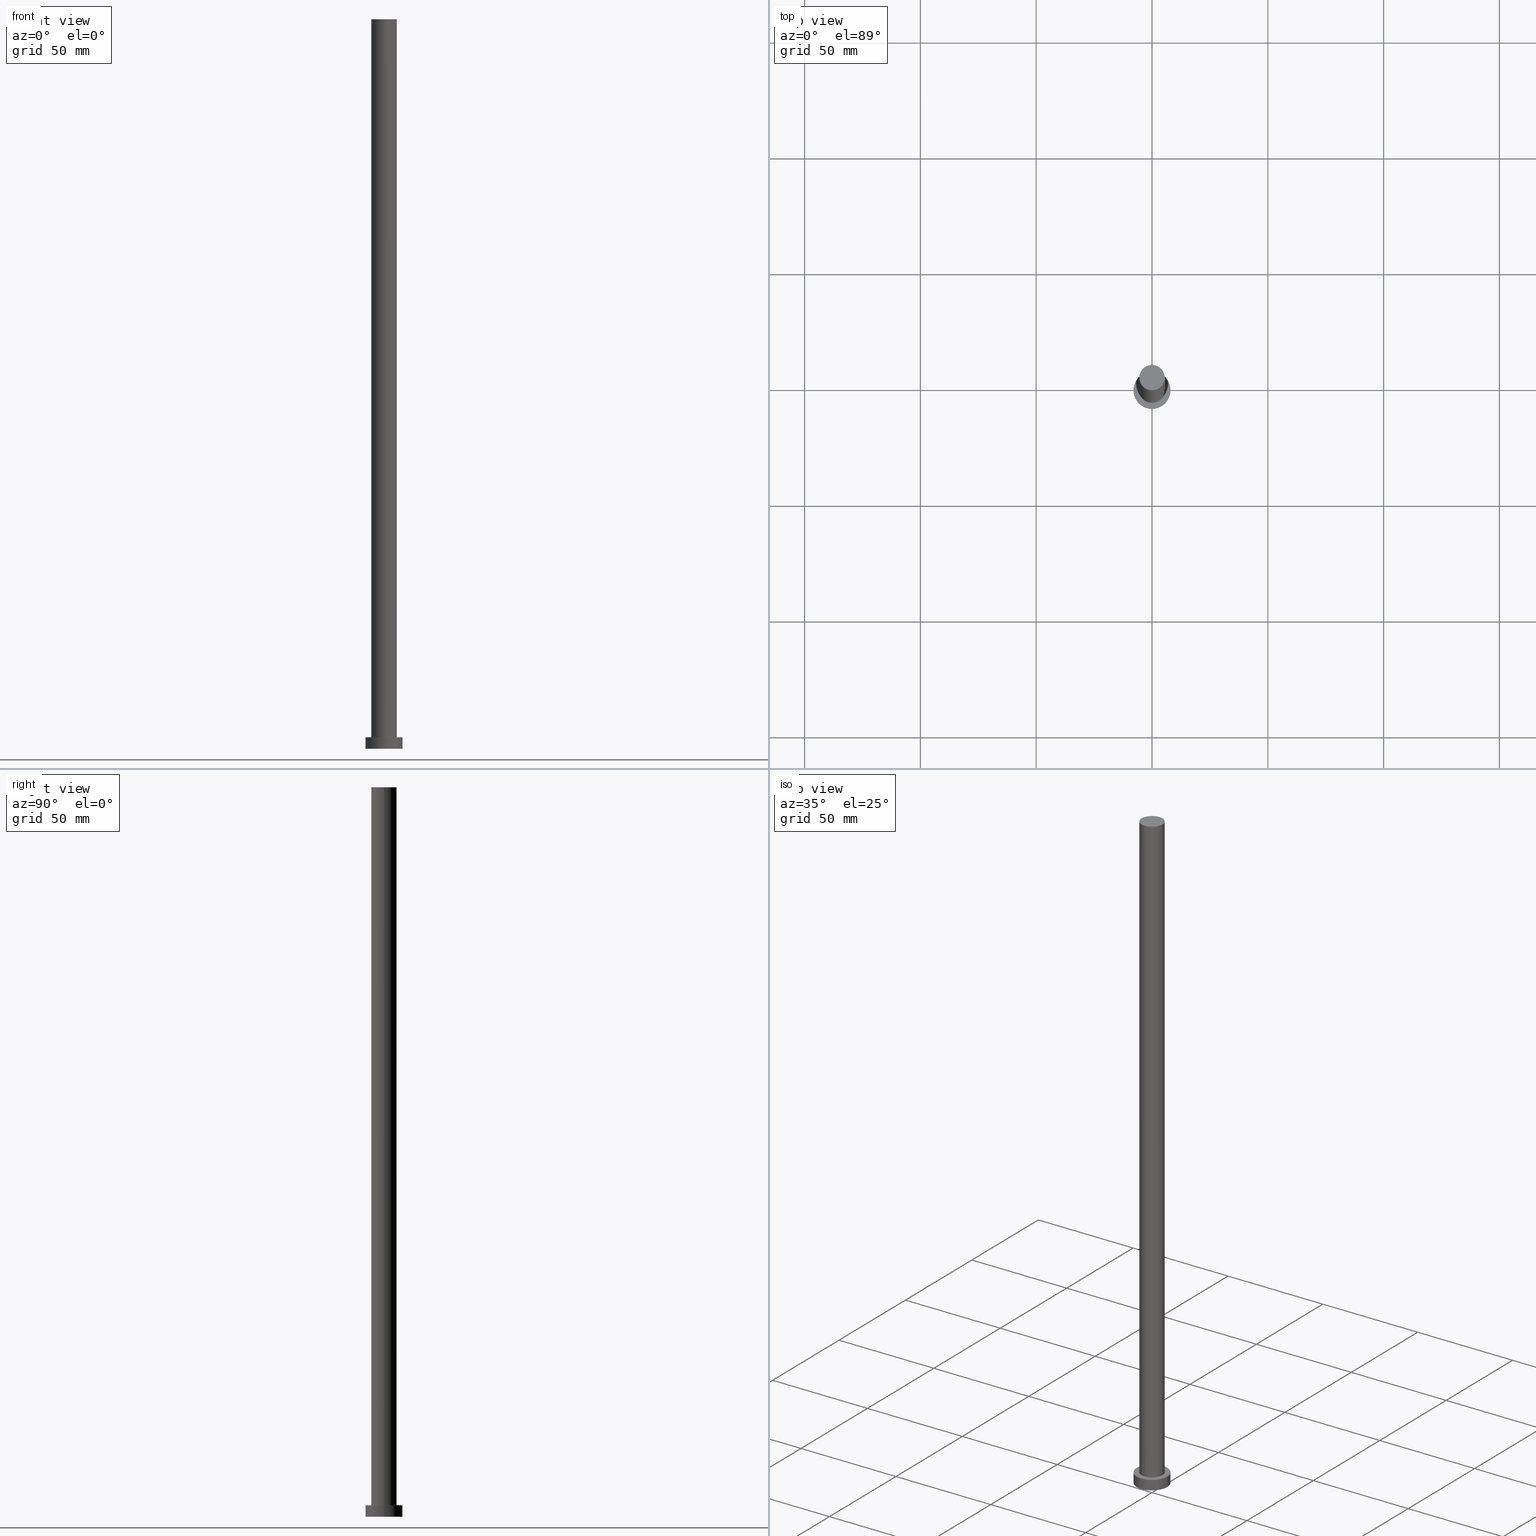
[diagram: canonical four-view strip — front | top / right | iso, engineering-drawing reading convention]
A machine part, canonical four-view strip (front | top / right | iso — engineering-drawing reading convention). The complete STEP part file that produces these views, byte-faithful:
ISO-10303-21;
HEADER;
FILE_DESCRIPTION (( 'STEP AP203' ),
    '1' );
FILE_NAME ('e5e1.STEP',
    '2023-02-12T11:14:09',
    ( '' ),
    ( '' ),
    'SwSTEP 2.0',
    'SolidWorks 2019',
    '' );
FILE_SCHEMA (( 'CONFIG_CONTROL_DESIGN' ));
ENDSEC;

DATA;
#1 = DIRECTION ( 'NONE',  ( 1.000000000000000000, 0.000000000000000000, 0.000000000000000000 ) ) ;
#2 = DATE_AND_TIME ( #180, #103 ) ;
#3 = DIRECTION ( 'NONE',  ( -0.000000000000000000, -0.000000000000000000, -1.000000000000000000 ) ) ;
#4 = VECTOR ( 'NONE', #3, 1000.000000000000000 ) ;
#5 = PLANE ( 'NONE',  #116 ) ;
#6 = CARTESIAN_POINT ( 'NONE',  ( 0.000000000000000000, 0.000000000000000000, 315.0000000000000000 ) ) ;
#7 = DIRECTION ( 'NONE',  ( -0.000000000000000000, -0.000000000000000000, -1.000000000000000000 ) ) ;
#8 = FACE_OUTER_BOUND ( 'NONE', #93, .T. ) ;
#9 = CIRCLE ( 'NONE', #147, 5.500000000000000000 ) ;
#10 = SECURITY_CLASSIFICATION ( '', '', #126 ) ;
#11 = DIRECTION ( 'NONE',  ( 0.000000000000000000, 0.000000000000000000, 1.000000000000000000 ) ) ;
#12 = CARTESIAN_POINT ( 'NONE',  ( 0.000000000000000000, 0.000000000000000000, 5.000000000000000000 ) ) ;
#13 = EDGE_CURVE ( 'NONE', #27, #154, #65, .T. ) ;
#14 = CYLINDRICAL_SURFACE ( 'NONE', #223, 5.500000000000000000 ) ;
#15 = AXIS2_PLACEMENT_3D ( 'NONE', #227, #49, #208 ) ;
#16 = DIRECTION ( 'NONE',  ( 0.000000000000000000, 0.000000000000000000, 1.000000000000000000 ) ) ;
#17 = DIRECTION ( 'NONE',  ( 1.000000000000000000, 0.000000000000000000, 0.000000000000000000 ) ) ;
#18 = VERTEX_POINT ( 'NONE', #80 ) ;
#19 = EDGE_LOOP ( 'NONE', ( #23, #25 ) ) ;
#20 = VERTEX_POINT ( 'NONE', #181 ) ;
#21 = ORIENTED_EDGE ( 'NONE', *, *, #214, .F. ) ;
#22 = PERSON_AND_ORGANIZATION ( #218, #231 ) ;
#23 = ORIENTED_EDGE ( 'NONE', *, *, #235, .T. ) ;
#24 = APPROVAL_STATUS ( 'not_yet_approved' ) ;
#25 = ORIENTED_EDGE ( 'NONE', *, *, #26, .T. ) ;
#26 = EDGE_CURVE ( 'NONE', #150, #43, #167, .T. ) ;
#27 = VERTEX_POINT ( 'NONE', #62 ) ;
#28 = FACE_BOUND ( 'NONE', #232, .T. ) ;
#29 = AXIS2_PLACEMENT_3D ( 'NONE', #102, #7, #48 ) ;
#30 = DIRECTION ( 'NONE',  ( 0.000000000000000000, 0.000000000000000000, 1.000000000000000000 ) ) ;
#31 = FACE_OUTER_BOUND ( 'NONE', #73, .T. ) ;
#32 = DIRECTION ( 'NONE',  ( 1.000000000000000000, 0.000000000000000000, 0.000000000000000000 ) ) ;
#33 = AXIS2_PLACEMENT_3D ( 'NONE', #230, #16, #17 ) ;
#34 = APPROVAL_STATUS ( 'not_yet_approved' ) ;
#35 = UNCERTAINTY_MEASURE_WITH_UNIT (LENGTH_MEASURE( 1.000000000000000082E-05 ), #125, 'distance_accuracy_value', 'NONE');
#36 = VERTEX_POINT ( 'NONE', #221 ) ;
#37 = ORIENTED_EDGE ( 'NONE', *, *, #146, .F. ) ;
#38 = CALENDAR_DATE ( 2023, 12, 2 ) ;
#39 = ORIENTED_EDGE ( 'NONE', *, *, #13, .F. ) ;
#40 = AXIS2_PLACEMENT_3D ( 'NONE', #6, #162, #99 ) ;
#41 = PERSON_AND_ORGANIZATION ( #218, #231 ) ;
#42 = APPROVAL ( #34, 'NEUR�EN�' ) ;
#43 = VERTEX_POINT ( 'NONE', #205 ) ;
#44 = CARTESIAN_POINT ( 'NONE',  ( -5.500000000000000000, 0.000000000000000000, 315.0000000000000000 ) ) ;
#45 = AXIS2_PLACEMENT_3D ( 'NONE', #185, #30, #50 ) ;
#46 = VECTOR ( 'NONE', #246, 1000.000000000000000 ) ;
#47 = LOCAL_TIME ( 12, 14, 9.000000000000000000, #219 ) ;
#48 = DIRECTION ( 'NONE',  ( -1.000000000000000000, 0.000000000000000000, 0.000000000000000000 ) ) ;
#49 = DIRECTION ( 'NONE',  ( -0.000000000000000000, -0.000000000000000000, -1.000000000000000000 ) ) ;
#50 = DIRECTION ( 'NONE',  ( 1.000000000000000000, 0.000000000000000000, 0.000000000000000000 ) ) ;
#51 = LOCAL_TIME ( 12, 14, 9.000000000000000000, #202 ) ;
#52 = FACE_OUTER_BOUND ( 'NONE', #253, .T. ) ;
#53 = DATE_TIME_ROLE ( 'creation_date' ) ;
#54 = ORIENTED_EDGE ( 'NONE', *, *, #198, .T. ) ;
#55 = LOCAL_TIME ( 12, 14, 9.000000000000000000, #159 ) ;
#56 = ORIENTED_EDGE ( 'NONE', *, *, #240, .F. ) ;
#57 = ORIENTED_EDGE ( 'NONE', *, *, #114, .F. ) ;
#58 = VERTEX_POINT ( 'NONE', #44 ) ;
#59 = DATE_AND_TIME ( #38, #47 ) ;
#60 = PERSON_AND_ORGANIZATION ( #218, #231 ) ;
#61 = DATE_AND_TIME ( #217, #51 ) ;
#62 = CARTESIAN_POINT ( 'NONE',  ( 5.500000000000000000, 6.735557395310442023E-16, 315.0000000000000000 ) ) ;
#63 = CARTESIAN_POINT ( 'NONE',  ( 0.000000000000000000, 0.000000000000000000, 5.000000000000000000 ) ) ;
#64 = APPROVAL ( #255, 'NEUR�EN�' ) ;
#65 = LINE ( 'NONE', #158, #4 ) ;
#66 = CARTESIAN_POINT ( 'NONE',  ( 5.500000000000000000, 6.735557395310442023E-16, 5.000000000000000000 ) ) ;
#67 = ADVANCED_BREP_SHAPE_REPRESENTATION ( 'e5e1', ( #226, #33 ), #156 ) ;
#68 = CARTESIAN_POINT ( 'NONE',  ( 0.000000000000000000, 0.000000000000000000, 0.000000000000000000 ) ) ;
#69 = DIRECTION ( 'NONE',  ( 0.000000000000000000, 0.000000000000000000, 1.000000000000000000 ) ) ;
#70 = CIRCLE ( 'NONE', #215, 8.000000000000000000 ) ;
#71 = PERSON_AND_ORGANIZATION ( #218, #231 ) ;
#72 = CIRCLE ( 'NONE', #220, 5.500000000000000000 ) ;
#73 = EDGE_LOOP ( 'NONE', ( #21, #176, #54, #199 ) ) ;
#74 = EDGE_LOOP ( 'NONE', ( #77, #178 ) ) ;
#75 = APPROVAL_ROLE ( '' ) ;
#76 = DESIGN_CONTEXT ( 'detailed design', #203, 'design' ) ;
#77 = ORIENTED_EDGE ( 'NONE', *, *, #240, .T. ) ;
#78 = MECHANICAL_CONTEXT ( 'NONE', #151, 'mechanical' ) ;
#79 = COORDINATED_UNIVERSAL_TIME_OFFSET ( 1, 0, .AHEAD. ) ;
#80 = CARTESIAN_POINT ( 'NONE',  ( -8.000000000000000000, 0.000000000000000000, 0.000000000000000000 ) ) ;
#81 = CARTESIAN_POINT ( 'NONE',  ( 0.000000000000000000, 0.000000000000000000, 0.000000000000000000 ) ) ;
#82 = ADVANCED_FACE ( 'NONE', ( #204 ), #5, .F. ) ;
#83 = CARTESIAN_POINT ( 'NONE',  ( -8.000000000000000000, 0.000000000000000000, 5.000000000000000000 ) ) ;
#84 = EDGE_CURVE ( 'NONE', #36, #154, #9, .T. ) ;
#85 = DIRECTION ( 'NONE',  ( 1.000000000000000000, 0.000000000000000000, 0.000000000000000000 ) ) ;
#86 = CARTESIAN_POINT ( 'NONE',  ( -5.500000000000000000, 0.000000000000000000, 315.0000000000000000 ) ) ;
#87 = CARTESIAN_POINT ( 'NONE',  ( 0.000000000000000000, 0.000000000000000000, 5.000000000000000000 ) ) ;
#88 = CALENDAR_DATE ( 2023, 12, 2 ) ;
#89 = COORDINATED_UNIVERSAL_TIME_OFFSET ( 1, 0, .AHEAD. ) ;
#90 = VECTOR ( 'NONE', #242, 1000.000000000000000 ) ;
#91 = CC_DESIGN_PERSON_AND_ORGANIZATION_ASSIGNMENT ( #41, #117, ( #10 ) ) ;
#92 = ORIENTED_EDGE ( 'NONE', *, *, #243, .T. ) ;
#93 = EDGE_LOOP ( 'NONE', ( #95, #113, #92, #37 ) ) ;
#94 = CC_DESIGN_DATE_AND_TIME_ASSIGNMENT ( #97, #249, ( #10 ) ) ;
#95 = ORIENTED_EDGE ( 'NONE', *, *, #26, .F. ) ;
#96 = PERSON_AND_ORGANIZATION ( #218, #231 ) ;
#97 = DATE_AND_TIME ( #88, #141 ) ;
#98 = ADVANCED_FACE ( 'NONE', ( #119 ), #183, .T. ) ;
#99 = DIRECTION ( 'NONE',  ( 1.000000000000000000, 0.000000000000000000, -0.000000000000000000 ) ) ;
#100 = APPROVAL ( #24, 'NEUR�EN�' ) ;
#101 = DIRECTION ( 'NONE',  ( 0.000000000000000000, 0.000000000000000000, 1.000000000000000000 ) ) ;
#102 = CARTESIAN_POINT ( 'NONE',  ( 0.000000000000000000, 0.000000000000000000, 315.0000000000000000 ) ) ;
#103 = LOCAL_TIME ( 12, 14, 9.000000000000000000, #89 ) ;
#104 = DIRECTION ( 'NONE',  ( 1.000000000000000000, 0.000000000000000000, 0.000000000000000000 ) ) ;
#105 = CARTESIAN_POINT ( 'NONE',  ( 8.000000000000000000, 9.797174393178825657E-16, 5.000000000000000000 ) ) ;
#106 = PRODUCT_DEFINITION ( 'NEZN�M�', '', #179, #76 ) ;
#107 = PERSON_AND_ORGANIZATION_ROLE ( 'design_owner' ) ;
#108 = APPROVAL_ROLE ( '' ) ;
#109 = ORIENTED_EDGE ( 'NONE', *, *, #198, .F. ) ;
#110 = CC_DESIGN_PERSON_AND_ORGANIZATION_ASSIGNMENT ( #132, #237, ( #106 ) ) ;
#111 = APPLICATION_PROTOCOL_DEFINITION ( 'international standard', 'config_control_design', 1994, #151 ) ;
#112 = ORIENTED_EDGE ( 'NONE', *, *, #243, .F. ) ;
#113 = ORIENTED_EDGE ( 'NONE', *, *, #225, .T. ) ;
#114 = EDGE_CURVE ( 'NONE', #18, #20, #254, .T. ) ;
#115 = APPROVAL_ROLE ( '' ) ;
#116 = AXIS2_PLACEMENT_3D ( 'NONE', #81, #161, #241 ) ;
#117 = PERSON_AND_ORGANIZATION_ROLE ( 'classification_officer' ) ;
#118 = APPROVAL_PERSON_ORGANIZATION ( #96, #64, #75 ) ;
#119 = FACE_OUTER_BOUND ( 'NONE', #74, .T. ) ;
#120 = CIRCLE ( 'NONE', #45, 5.500000000000000000 ) ;
#121 = VECTOR ( 'NONE', #122, 1000.000000000000000 ) ;
#122 = DIRECTION ( 'NONE',  ( -0.000000000000000000, -0.000000000000000000, -1.000000000000000000 ) ) ;
#123 = DIRECTION ( 'NONE',  ( -1.000000000000000000, 0.000000000000000000, 0.000000000000000000 ) ) ;
#124 = FACE_OUTER_BOUND ( 'NONE', #152, .T. ) ;
#125 =( LENGTH_UNIT ( ) NAMED_UNIT ( * ) SI_UNIT ( .MILLI., .METRE. ) );
#126 = SECURITY_CLASSIFICATION_LEVEL ( 'unclassified' ) ;
#127 = ORIENTED_EDGE ( 'NONE', *, *, #114, .T. ) ;
#128 = APPROVAL_PERSON_ORGANIZATION ( #71, #42, #108 ) ;
#129 = ADVANCED_FACE ( 'NONE', ( #124 ), #140, .T. ) ;
#130 = ORIENTED_EDGE ( 'NONE', *, *, #225, .F. ) ;
#131 = PERSON_AND_ORGANIZATION ( #218, #231 ) ;
#132 = PERSON_AND_ORGANIZATION ( #218, #231 ) ;
#133 =( NAMED_UNIT ( * ) SI_UNIT ( $, .STERADIAN. ) SOLID_ANGLE_UNIT ( ) );
#134 = CC_DESIGN_PERSON_AND_ORGANIZATION_ASSIGNMENT ( #145, #238, ( #179 ) ) ;
#135 = DIRECTION ( 'NONE',  ( 0.000000000000000000, 0.000000000000000000, 1.000000000000000000 ) ) ;
#136 = CC_DESIGN_DATE_AND_TIME_ASSIGNMENT ( #59, #53, ( #106 ) ) ;
#137 = DIRECTION ( 'NONE',  ( 1.000000000000000000, 0.000000000000000000, -0.000000000000000000 ) ) ;
#138 = CARTESIAN_POINT ( 'NONE',  ( 8.000000000000000000, 9.797174393178825657E-16, 5.000000000000000000 ) ) ;
#139 = DIRECTION ( 'NONE',  ( 1.000000000000000000, 0.000000000000000000, 0.000000000000000000 ) ) ;
#140 = CYLINDRICAL_SURFACE ( 'NONE', #186, 8.000000000000000000 ) ;
#141 = LOCAL_TIME ( 12, 14, 9.000000000000000000, #79 ) ;
#142 = AXIS2_PLACEMENT_3D ( 'NONE', #187, #11, #85 ) ;
#143 = DIRECTION ( 'NONE',  ( -1.000000000000000000, 0.000000000000000000, 0.000000000000000000 ) ) ;
#144 = PRODUCT_DEFINITION_SHAPE ( 'NONE', 'NONE',  #106 ) ;
#145 = PERSON_AND_ORGANIZATION ( #218, #231 ) ;
#146 = EDGE_CURVE ( 'NONE', #43, #18, #184, .T. ) ;
#147 = AXIS2_PLACEMENT_3D ( 'NONE', #63, #135, #222 ) ;
#148 =( NAMED_UNIT ( * ) PLANE_ANGLE_UNIT ( ) SI_UNIT ( $, .RADIAN. ) );
#149 = ORIENTED_EDGE ( 'NONE', *, *, #146, .T. ) ;
#150 = VERTEX_POINT ( 'NONE', #138 ) ;
#151 = APPLICATION_CONTEXT ( 'configuration controlled 3d designs of mechanical parts and assemblies' ) ;
#152 = EDGE_LOOP ( 'NONE', ( #130, #173, #149, #127 ) ) ;
#153 = ADVANCED_FACE ( 'NONE', ( #31 ), #206, .T. ) ;
#154 = VERTEX_POINT ( 'NONE', #66 ) ;
#155 = CIRCLE ( 'NONE', #142, 8.000000000000000000 ) ;
#156 =( GEOMETRIC_REPRESENTATION_CONTEXT ( 3 ) GLOBAL_UNCERTAINTY_ASSIGNED_CONTEXT ( ( #35 ) ) GLOBAL_UNIT_ASSIGNED_CONTEXT ( ( #125, #148, #133 ) ) REPRESENTATION_CONTEXT ( 'NONE', 'WORKASPACE' ) );
#157 = APPROVAL_DATE_TIME ( #213, #64 ) ;
#158 = CARTESIAN_POINT ( 'NONE',  ( 5.500000000000000000, 6.735557395310442023E-16, 315.0000000000000000 ) ) ;
#159 = COORDINATED_UNIVERSAL_TIME_OFFSET ( 1, 0, .AHEAD. ) ;
#160 = CARTESIAN_POINT ( 'NONE',  ( 0.000000000000000000, 0.000000000000000000, 5.000000000000000000 ) ) ;
#161 = DIRECTION ( 'NONE',  ( 0.000000000000000000, 0.000000000000000000, 1.000000000000000000 ) ) ;
#162 = DIRECTION ( 'NONE',  ( 0.000000000000000000, 0.000000000000000000, 1.000000000000000000 ) ) ;
#163 = AXIS2_PLACEMENT_3D ( 'NONE', #160, #239, #1 ) ;
#164 = CYLINDRICAL_SURFACE ( 'NONE', #15, 8.000000000000000000 ) ;
#165 = CARTESIAN_POINT ( 'NONE',  ( 0.000000000000000000, 0.000000000000000000, 315.0000000000000000 ) ) ;
#166 = DIRECTION ( 'NONE',  ( 1.000000000000000000, 0.000000000000000000, 0.000000000000000000 ) ) ;
#167 = CIRCLE ( 'NONE', #163, 8.000000000000000000 ) ;
#168 = CARTESIAN_POINT ( 'NONE',  ( 0.000000000000000000, 0.000000000000000000, 315.0000000000000000 ) ) ;
#169 = CC_DESIGN_APPROVAL ( #64, ( #106 ) ) ;
#170 = CIRCLE ( 'NONE', #182, 5.500000000000000000 ) ;
#171 = CALENDAR_DATE ( 2023, 12, 2 ) ;
#172 = SHAPE_DEFINITION_REPRESENTATION ( #144, #67 ) ;
#173 = ORIENTED_EDGE ( 'NONE', *, *, #235, .F. ) ;
#174 = ORIENTED_EDGE ( 'NONE', *, *, #84, .T. ) ;
#175 = ORIENTED_EDGE ( 'NONE', *, *, #247, .T. ) ;
#176 = ORIENTED_EDGE ( 'NONE', *, *, #13, .T. ) ;
#177 = APPLICATION_PROTOCOL_DEFINITION ( 'international standard', 'config_control_design', 1994, #203 ) ;
#178 = ORIENTED_EDGE ( 'NONE', *, *, #214, .T. ) ;
#179 = PRODUCT_DEFINITION_FORMATION_WITH_SPECIFIED_SOURCE ( 'LIBOVOLN�', '', #191, .NOT_KNOWN. ) ;
#180 = CALENDAR_DATE ( 2023, 12, 2 ) ;
#181 = CARTESIAN_POINT ( 'NONE',  ( 8.000000000000000000, 9.797174393178825657E-16, 0.000000000000000000 ) ) ;
#182 = AXIS2_PLACEMENT_3D ( 'NONE', #165, #245, #139 ) ;
#183 = PLANE ( 'NONE',  #40 ) ;
#184 = LINE ( 'NONE', #83, #90 ) ;
#185 = CARTESIAN_POINT ( 'NONE',  ( 0.000000000000000000, 0.000000000000000000, 315.0000000000000000 ) ) ;
#186 = AXIS2_PLACEMENT_3D ( 'NONE', #12, #224, #123 ) ;
#187 = CARTESIAN_POINT ( 'NONE',  ( 0.000000000000000000, 0.000000000000000000, 5.000000000000000000 ) ) ;
#188 = CC_DESIGN_PERSON_AND_ORGANIZATION_ASSIGNMENT ( #60, #193, ( #179 ) ) ;
#189 = LINE ( 'NONE', #86, #46 ) ;
#190 = CARTESIAN_POINT ( 'NONE',  ( 0.000000000000000000, 0.000000000000000000, 5.000000000000000000 ) ) ;
#191 = PRODUCT ( 'e5e1', 'e5e1', '', ( #78 ) ) ;
#192 = ADVANCED_FACE ( 'NONE', ( #28, #244 ), #212, .T. ) ;
#193 = PERSON_AND_ORGANIZATION_ROLE ( 'design_supplier' ) ;
#194 = CC_DESIGN_APPROVAL ( #100, ( #179 ) ) ;
#195 = APPROVAL_DATE_TIME ( #2, #42 ) ;
#196 = EDGE_LOOP ( 'NONE', ( #57, #112 ) ) ;
#197 = CLOSED_SHELL ( 'NONE', ( #153, #216, #129, #192, #82, #252, #98 ) ) ;
#198 = EDGE_CURVE ( 'NONE', #154, #36, #72, .T. ) ;
#199 = ORIENTED_EDGE ( 'NONE', *, *, #247, .F. ) ;
#200 = APPROVAL_DATE_TIME ( #61, #100 ) ;
#201 = CC_DESIGN_SECURITY_CLASSIFICATION ( #10, ( #179 ) ) ;
#202 = COORDINATED_UNIVERSAL_TIME_OFFSET ( 1, 0, .AHEAD. ) ;
#203 = APPLICATION_CONTEXT ( 'configuration controlled 3d designs of mechanical parts and assemblies' ) ;
#204 = FACE_OUTER_BOUND ( 'NONE', #196, .T. ) ;
#205 = CARTESIAN_POINT ( 'NONE',  ( -8.000000000000000000, 0.000000000000000000, 5.000000000000000000 ) ) ;
#206 = CYLINDRICAL_SURFACE ( 'NONE', #29, 5.500000000000000000 ) ;
#207 = PRODUCT_RELATED_PRODUCT_CATEGORY ( 'detail', '', ( #191 ) ) ;
#208 = DIRECTION ( 'NONE',  ( -1.000000000000000000, 0.000000000000000000, 0.000000000000000000 ) ) ;
#209 = APPROVAL_PERSON_ORGANIZATION ( #131, #100, #115 ) ;
#210 = DIRECTION ( 'NONE',  ( 0.000000000000000000, 0.000000000000000000, 1.000000000000000000 ) ) ;
#211 = LINE ( 'NONE', #105, #121 ) ;
#212 = PLANE ( 'NONE',  #234 ) ;
#213 = DATE_AND_TIME ( #171, #55 ) ;
#214 = EDGE_CURVE ( 'NONE', #27, #58, #120, .T. ) ;
#215 = AXIS2_PLACEMENT_3D ( 'NONE', #228, #210, #104 ) ;
#216 = ADVANCED_FACE ( 'NONE', ( #8 ), #164, .T. ) ;
#217 = CALENDAR_DATE ( 2023, 12, 2 ) ;
#218 = PERSON ( 'NEUR�EN�', 'NEUR�EN�', 'NEUR�EN�', ('NEUR�EN�'), ('NEUR�EN�'), ('NEUR�EN�') ) ;
#219 = COORDINATED_UNIVERSAL_TIME_OFFSET ( 1, 0, .AHEAD. ) ;
#220 = AXIS2_PLACEMENT_3D ( 'NONE', #190, #229, #32 ) ;
#221 = CARTESIAN_POINT ( 'NONE',  ( -5.500000000000000000, 0.000000000000000000, 5.000000000000000000 ) ) ;
#222 = DIRECTION ( 'NONE',  ( 1.000000000000000000, 0.000000000000000000, 0.000000000000000000 ) ) ;
#223 = AXIS2_PLACEMENT_3D ( 'NONE', #168, #248, #143 ) ;
#224 = DIRECTION ( 'NONE',  ( -0.000000000000000000, -0.000000000000000000, -1.000000000000000000 ) ) ;
#225 = EDGE_CURVE ( 'NONE', #150, #20, #211, .T. ) ;
#226 = MANIFOLD_SOLID_BREP ( 'P�idat vysunut�m3', #197 ) ;
#227 = CARTESIAN_POINT ( 'NONE',  ( 0.000000000000000000, 0.000000000000000000, 5.000000000000000000 ) ) ;
#228 = CARTESIAN_POINT ( 'NONE',  ( 0.000000000000000000, 0.000000000000000000, 0.000000000000000000 ) ) ;
#229 = DIRECTION ( 'NONE',  ( 0.000000000000000000, 0.000000000000000000, 1.000000000000000000 ) ) ;
#230 = CARTESIAN_POINT ( 'NONE',  ( 0.000000000000000000, 0.000000000000000000, 0.000000000000000000 ) ) ;
#231 = ORGANIZATION ( 'NEUR�EN�', 'NEUR�EN�', '' ) ;
#232 = EDGE_LOOP ( 'NONE', ( #251, #109 ) ) ;
#233 = CC_DESIGN_PERSON_AND_ORGANIZATION_ASSIGNMENT ( #22, #107, ( #191 ) ) ;
#234 = AXIS2_PLACEMENT_3D ( 'NONE', #87, #101, #137 ) ;
#235 = EDGE_CURVE ( 'NONE', #43, #150, #155, .T. ) ;
#236 = CC_DESIGN_APPROVAL ( #42, ( #10 ) ) ;
#237 = PERSON_AND_ORGANIZATION_ROLE ( 'creator' ) ;
#238 = PERSON_AND_ORGANIZATION_ROLE ( 'creator' ) ;
#239 = DIRECTION ( 'NONE',  ( 0.000000000000000000, 0.000000000000000000, 1.000000000000000000 ) ) ;
#240 = EDGE_CURVE ( 'NONE', #58, #27, #170, .T. ) ;
#241 = DIRECTION ( 'NONE',  ( 1.000000000000000000, 0.000000000000000000, -0.000000000000000000 ) ) ;
#242 = DIRECTION ( 'NONE',  ( -0.000000000000000000, -0.000000000000000000, -1.000000000000000000 ) ) ;
#243 = EDGE_CURVE ( 'NONE', #20, #18, #70, .T. ) ;
#244 = FACE_OUTER_BOUND ( 'NONE', #19, .T. ) ;
#245 = DIRECTION ( 'NONE',  ( 0.000000000000000000, 0.000000000000000000, 1.000000000000000000 ) ) ;
#246 = DIRECTION ( 'NONE',  ( -0.000000000000000000, -0.000000000000000000, -1.000000000000000000 ) ) ;
#247 = EDGE_CURVE ( 'NONE', #58, #36, #189, .T. ) ;
#248 = DIRECTION ( 'NONE',  ( -0.000000000000000000, -0.000000000000000000, -1.000000000000000000 ) ) ;
#249 = DATE_TIME_ROLE ( 'classification_date' ) ;
#250 = AXIS2_PLACEMENT_3D ( 'NONE', #68, #69, #166 ) ;
#251 = ORIENTED_EDGE ( 'NONE', *, *, #84, .F. ) ;
#252 = ADVANCED_FACE ( 'NONE', ( #52 ), #14, .T. ) ;
#253 = EDGE_LOOP ( 'NONE', ( #39, #56, #175, #174 ) ) ;
#254 = CIRCLE ( 'NONE', #250, 8.000000000000000000 ) ;
#255 = APPROVAL_STATUS ( 'not_yet_approved' ) ;
ENDSEC;
END-ISO-10303-21;
